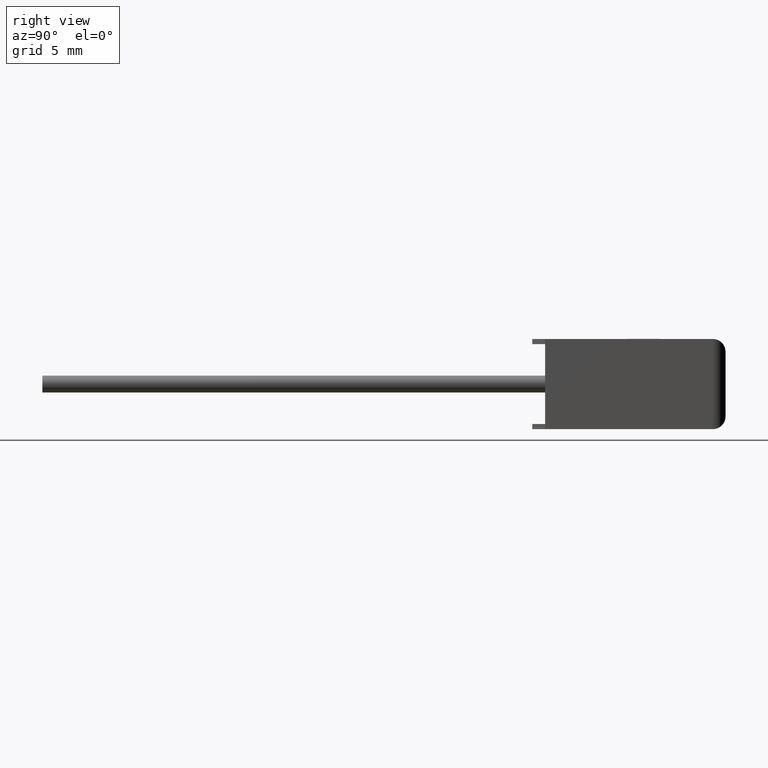
[diagram: clean part render]
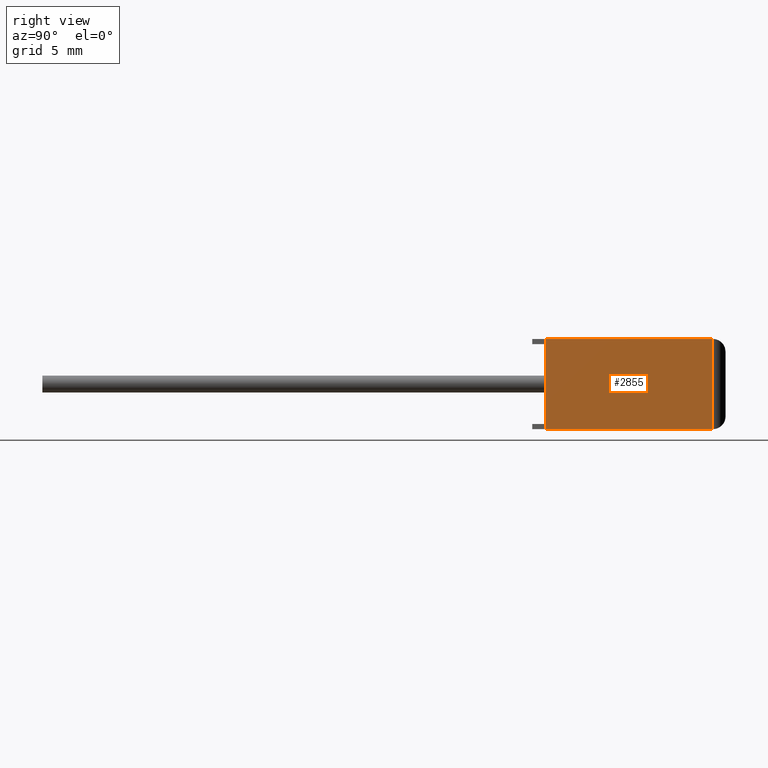
[diagram: same view with one face highlighted and labeled with its STEP entity id]
A machine part, right view. The second image highlights one B-rep face of the part: STEP entity #2855.
In plain terms, the highlighted planar face has unit normal (-1, 0, 0).
Its self-contained STEP definition (entity closure, byte-faithful):
#118 = FACE_OUTER_BOUND ( 'NONE', #1301, .T. ) ;
#290 = ORIENTED_EDGE ( 'NONE', *, *, #1557, .T. ) ;
#397 = CARTESIAN_POINT ( 'NONE',  ( 9.500000000000000000, 0.0000000000000000000, 3.500000000000000000 ) ) ;
#418 = DIRECTION ( 'NONE',  ( -1.000000000000000000, 0.0000000000000000000, 0.0000000000000000000 ) ) ;
#444 = EDGE_CURVE ( 'NONE', #1706, #2215, #1771, .T. ) ;
#474 = EDGE_CURVE ( 'NONE', #3221, #1064, #586, .T. ) ;
#586 = LINE ( 'NONE', #2530, #2487 ) ;
#645 = PLANE ( 'NONE',  #2982 ) ;
#759 = CARTESIAN_POINT ( 'NONE',  ( 9.500000000000000000, 6.500000000000000900, 3.500000000000000000 ) ) ;
#762 = CARTESIAN_POINT ( 'NONE',  ( 9.500000000000000000, 6.500000000000000900, 3.500000000000000000 ) ) ;
#940 = DIRECTION ( 'NONE',  ( 0.0000000000000000000, 1.000000000000000000, 0.0000000000000000000 ) ) ;
#1063 = VECTOR ( 'NONE', #2534, 1000.000000000000000 ) ;
#1064 = VERTEX_POINT ( 'NONE', #762 ) ;
#1192 = DIRECTION ( 'NONE',  ( -0.0000000000000000000, -0.0000000000000000000, -1.000000000000000000 ) ) ;
#1225 = ORIENTED_EDGE ( 'NONE', *, *, #474, .F. ) ;
#1234 = LINE ( 'NONE', #397, #2526 ) ;
#1301 = EDGE_LOOP ( 'NONE', ( #2810, #2761, #1225, #290 ) ) ;
#1353 = LINE ( 'NONE', #759, #1063 ) ;
#1365 = EDGE_CURVE ( 'NONE', #2215, #1064, #1353, .T. ) ;
#1536 = DIRECTION ( 'NONE',  ( 0.0000000000000000000, 1.000000000000000000, 0.0000000000000000000 ) ) ;
#1557 = EDGE_CURVE ( 'NONE', #3221, #1706, #1234, .T. ) ;
#1628 = VECTOR ( 'NONE', #940, 1000.000000000000000 ) ;
#1698 = CARTESIAN_POINT ( 'NONE',  ( 9.500000000000000000, 6.500000000000000900, 0.0000000000000000000 ) ) ;
#1706 = VERTEX_POINT ( 'NONE', #2578 ) ;
#1771 = LINE ( 'NONE', #2053, #1628 ) ;
#2053 = CARTESIAN_POINT ( 'NONE',  ( 9.500000000000000000, 0.0000000000000000000, 0.0000000000000000000 ) ) ;
#2215 = VERTEX_POINT ( 'NONE', #1698 ) ;
#2487 = VECTOR ( 'NONE', #1536, 1000.000000000000000 ) ;
#2526 = VECTOR ( 'NONE', #1192, 1000.000000000000000 ) ;
#2530 = CARTESIAN_POINT ( 'NONE',  ( 9.500000000000000000, 0.0000000000000000000, 3.500000000000000000 ) ) ;
#2534 = DIRECTION ( 'NONE',  ( -0.0000000000000000000, -0.0000000000000000000, 1.000000000000000000 ) ) ;
#2578 = CARTESIAN_POINT ( 'NONE',  ( 9.500000000000000000, 0.0000000000000000000, 0.0000000000000000000 ) ) ;
#2669 = CARTESIAN_POINT ( 'NONE',  ( 9.500000000000000000, 0.0000000000000000000, 3.500000000000000000 ) ) ;
#2761 = ORIENTED_EDGE ( 'NONE', *, *, #1365, .T. ) ;
#2810 = ORIENTED_EDGE ( 'NONE', *, *, #444, .T. ) ;
#2855 = ADVANCED_FACE ( 'NONE', ( #118 ), #645, .F. ) ;
#2982 = AXIS2_PLACEMENT_3D ( 'NONE', #2669, #418, #3177 ) ;
#3034 = CARTESIAN_POINT ( 'NONE',  ( 9.500000000000000000, 0.0000000000000000000, 3.500000000000000000 ) ) ;
#3177 = DIRECTION ( 'NONE',  ( 0.0000000000000000000, 0.0000000000000000000, 1.000000000000000000 ) ) ;
#3221 = VERTEX_POINT ( 'NONE', #3034 ) ;